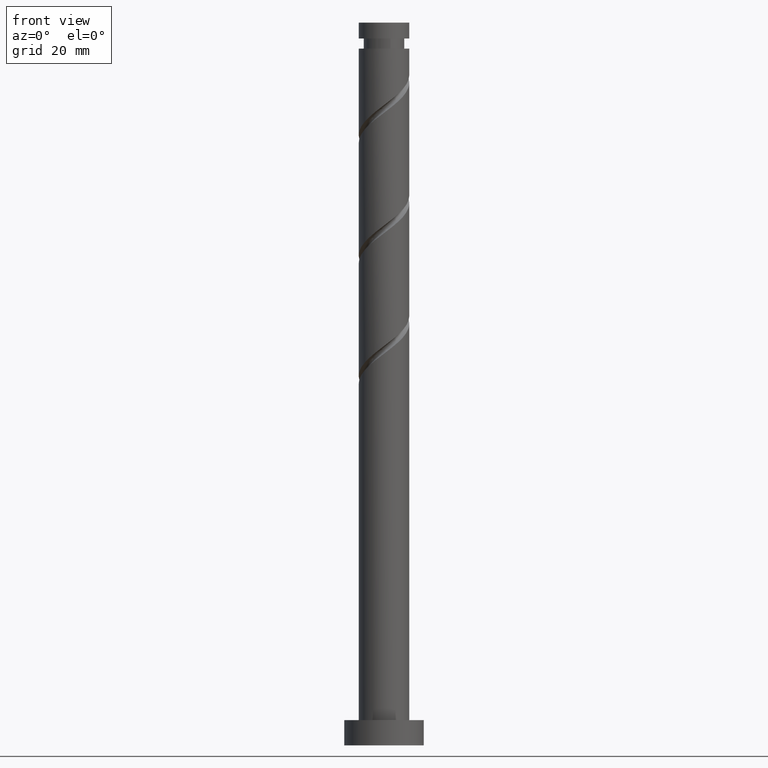
[diagram: clean part render]
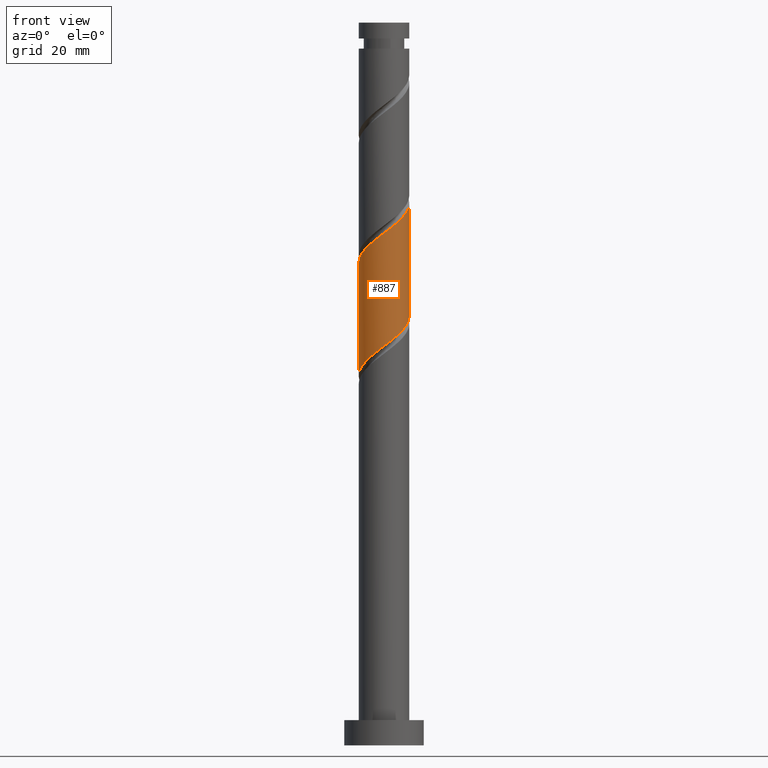
[diagram: same view with one face highlighted and labeled with its STEP entity id]
A machine part, front view. The second image highlights one B-rep face of the part: STEP entity #887.
In plain terms, the highlighted cylindrical surface (edge-blend (fillet) strip) has radius 7 mm, axis along (-0, -0, -1).
Its self-contained STEP definition (entity closure, byte-faithful):
#42 = CARTESIAN_POINT ( 'NONE',  ( 3.097475485684177521, -6.344677473403557144, 112.9322542878664279 ) ) ;
#59 = CARTESIAN_POINT ( 'NONE',  ( -6.986781546048323577, -0.4299809621350539346, 102.5155876211998134 ) ) ;
#65 = CARTESIAN_POINT ( 'NONE',  ( -6.930173478468212522, -1.349808202769841259, 103.2100320656442278 ) ) ;
#70 = VERTEX_POINT ( 'NONE', #1142 ) ;
#72 = CARTESIAN_POINT ( 'NONE',  ( -0.4898462784997363317, -7.043389613628436408, 110.1544765100886849 ) ) ;
#123 = CARTESIAN_POINT ( 'NONE',  ( 6.344677473403562473, -3.097475485684187735, 147.6544765100886991 ) ) ;
#136 = ORIENTED_EDGE ( 'NONE', *, *, #754, .T. ) ;
#144 = VERTEX_POINT ( 'NONE', #229 ) ;
#147 = LINE ( 'NONE', #1613, #1147 ) ;
#149 = CARTESIAN_POINT ( 'NONE',  ( 7.000000000000000888, 8.572527594031474176E-16, 200.0000000000000000 ) ) ;
#162 = CARTESIAN_POINT ( 'NONE',  ( 7.000000000000000888, 9.630237181691427221E-15, 118.8569320541876806 ) ) ;
#186 = CARTESIAN_POINT ( 'NONE',  ( -2.296118545398808664, -6.676610386371562456, 108.7655876211997850 ) ) ;
#191 = CARTESIAN_POINT ( 'NONE',  ( -3.945914127944255778, -5.854831194903820979, 107.3766987323109134 ) ) ;
#200 = EDGE_CURVE ( 'NONE', #442, #144, #1252, .T. ) ;
#210 = CARTESIAN_POINT ( 'NONE',  ( -5.326802183601721197, -4.634054933069405635, 105.9878098434220419 ) ) ;
#229 = CARTESIAN_POINT ( 'NONE',  ( 7.000000000000011546, 4.486135333086043795E-16, 150.0631320771009030 ) ) ;
#245 = CARTESIAN_POINT ( 'NONE',  ( -6.265720790637701931, -3.121016336671533331, 135.8489209545331562 ) ) ;
#253 = CARTESIAN_POINT ( 'NONE',  ( -0.4299809621350582090, -6.986781546048334235, 141.4044765100886707 ) ) ;
#258 = DIRECTION ( 'NONE',  ( -0.000000000000000000, -0.000000000000000000, -1.000000000000000000 ) ) ;
#332 = CARTESIAN_POINT ( 'NONE',  ( -7.000000000000010658, -4.725395884183966564E-15, 133.3964654104341889 ) ) ;
#358 = CARTESIAN_POINT ( 'NONE',  ( 2.296118545398806443, -6.676610386371576666, 143.4878098434220135 ) ) ;
#366 = CARTESIAN_POINT ( 'NONE',  ( -7.000000000000010658, -0.7035264706814521318, 133.9298917796234321 ) ) ;
#375 = CARTESIAN_POINT ( 'NONE',  ( -6.676610386371576666, -2.296118545398806443, 135.1544765100887275 ) ) ;
#387 = CARTESIAN_POINT ( 'NONE',  ( -3.097475485684187735, -6.344677473403563361, 139.3211431767553847 ) ) ;
#390 = ORIENTED_EDGE ( 'NONE', *, *, #200, .F. ) ;
#393 = DIRECTION ( 'NONE',  ( -0.000000000000000000, -0.000000000000000000, -1.000000000000000000 ) ) ;
#427 = EDGE_CURVE ( 'NONE', #70, #1440, #586, .T. ) ;
#442 = VERTEX_POINT ( 'NONE', #332 ) ;
#447 = CARTESIAN_POINT ( 'NONE',  ( -7.000000000000000888, 8.015228461780444237E-15, 102.1902653875210092 ) ) ;
#474 = CARTESIAN_POINT ( 'NONE',  ( -1.392982411949271304, -6.860000000000002096, 109.4600320656442562 ) ) ;
#523 = CARTESIAN_POINT ( 'NONE',  ( 0.000000000000000000, 0.000000000000000000, 200.0000000000000000 ) ) ;
#549 = ORIENTED_EDGE ( 'NONE', *, *, #1127, .F. ) ;
#563 = CYLINDRICAL_SURFACE ( 'NONE', #1430, 7.000000000000000888 ) ;
#578 = CARTESIAN_POINT ( 'NONE',  ( 0.4299809621350517697, -6.986781546048325353, 110.8489209545331420 ) ) ;
#586 =( BOUNDED_CURVE ( )  B_SPLINE_CURVE ( 2, ( #162, #676, #1203, #595, #863, #1133, #1552, #1140, #1012, #42, #1665, #1687, #578, #72, #474, #186, #1020, #191, #1414, #210, #1544, #1538, #719, #65, #59, #1556, #733 ),
 .UNSPECIFIED., .F., .T. ) 
 B_SPLINE_CURVE_WITH_KNOTS ( ( 3, 2, 2, 2, 2, 2, 2, 2, 2, 2, 2, 2, 2, 3 ),
 ( 0.8045317669814462391, 0.8125000000000000000, 0.8229166666666666297, 0.8333333333333333703, 0.8437500000000000000, 0.8541666666666666297, 0.8645833333333333703, 0.8750000000000000000, 0.8854166666666666297, 0.8958333333333333703, 0.9062500000000000000, 0.9166666666666666297, 0.9270833333333333703, 0.9295317669814463502 ),
 .UNSPECIFIED. ) 
 CURVE ( )  GEOMETRIC_REPRESENTATION_ITEM ( )  RATIONAL_B_SPLINE_CURVE ( ( 0.9062941362546358404, 0.9031415850403401446, 0.9090909090909153889, 0.9013135103398340897, 0.9090909090909153889, 0.9013135103398340897, 0.9090909090909153889, 0.9013135103398340897, 0.9090909090909153889, 0.9013135103398340897, 0.9090909090909153889, 0.9013135103398340897, 0.9090909090909153889, 0.9013135103398340897, 0.9090909090909153889, 0.9013135103398340897, 0.9090909090909153889, 0.9013135103398340897, 0.9090909090909153889, 0.9013135103398340897, 0.9090909090909153889, 0.9013135103398340897, 0.9090909090909153889, 0.9013135103398340897, 0.9090909090909153889, 0.9072628343904091119, 0.9062941362546357293 ) ) 
 REPRESENTATION_ITEM ( '' )  );
#595 = CARTESIAN_POINT ( 'NONE',  ( 6.676610386371559791, -2.296118545398810884, 117.0989209545331136 ) ) ;
#656 = CARTESIAN_POINT ( 'NONE',  ( 1.392982411949269972, -6.860000000000008313, 142.7933653989775848 ) ) ;
#664 = CARTESIAN_POINT ( 'NONE',  ( 6.637425475935891939, -2.223641844227019160, 148.3489209545330993 ) ) ;
#676 = CARTESIAN_POINT ( 'NONE',  ( 7.000000000000002665, -0.7035264706814455815, 118.3235056849983948 ) ) ;
#678 = EDGE_LOOP ( 'NONE', ( #549, #390, #136, #756 ) ) ;
#719 = CARTESIAN_POINT ( 'NONE',  ( -6.637425475935885721, -2.223641844227011166, 103.9044765100887133 ) ) ;
#733 = CARTESIAN_POINT ( 'NONE',  ( -7.000000000000000888, 8.015228461780444237E-15, 102.1902653875210092 ) ) ;
#754 = EDGE_CURVE ( 'NONE', #442, #1440, #147, .T. ) ;
#756 = ORIENTED_EDGE ( 'NONE', *, *, #427, .F. ) ;
#779 = CARTESIAN_POINT ( 'NONE',  ( 6.930173478468224069, -1.349808202769851029, 149.0433653989776133 ) ) ;
#790 = CARTESIAN_POINT ( 'NONE',  ( -6.860000000000008313, -1.392982411949270416, 134.4600320656442705 ) ) ;
#798 = CARTESIAN_POINT ( 'NONE',  ( 3.121016336671531555, -6.265720790637702819, 144.1822542878664990 ) ) ;
#863 = CARTESIAN_POINT ( 'NONE',  ( 6.265720790637692161, -3.121016336671535552, 116.4044765100886991 ) ) ;
#887 = ADVANCED_FACE ( 'NONE', ( #1365 ), #563, .T. ) ;
#898 = CARTESIAN_POINT ( 'NONE',  ( 7.000000000000011546, -0.2151936616037116168, 149.8999683890727113 ) ) ;
#916 = CARTESIAN_POINT ( 'NONE',  ( 4.636358155772991374, -5.244443063986622633, 145.5711431767553563 ) ) ;
#933 = CARTESIAN_POINT ( 'NONE',  ( -4.634054933069417181, -5.326802183601726526, 137.9322542878664990 ) ) ;
#1012 = CARTESIAN_POINT ( 'NONE',  ( 3.865765209376792022, -5.835739828502640947, 113.6266987323109419 ) ) ;
#1020 = CARTESIAN_POINT ( 'NONE',  ( -3.121016336671531999, -6.265720790637692161, 108.0711431767553563 ) ) ;
#1030 = CARTESIAN_POINT ( 'NONE',  ( -5.854831194903831637, -3.945914127944258887, 136.5433653989776417 ) ) ;
#1049 = CARTESIAN_POINT ( 'NONE',  ( -1.349808202769847476, -6.930173478468224069, 140.7100320656442989 ) ) ;
#1127 = EDGE_CURVE ( 'NONE', #144, #70, #1649, .T. ) ;
#1133 = CARTESIAN_POINT ( 'NONE',  ( 5.854831194903817426, -3.945914127944258443, 115.7100320656442136 ) ) ;
#1140 = CARTESIAN_POINT ( 'NONE',  ( 4.634054933069404747, -5.326802183601721197, 114.3211431767553421 ) ) ;
#1142 = CARTESIAN_POINT ( 'NONE',  ( 7.000000000000000888, 9.630237181691427221E-15, 118.8569320541876806 ) ) ;
#1147 = VECTOR ( 'NONE', #258, 1000.000000000000000 ) ;
#1171 = CARTESIAN_POINT ( 'NONE',  ( -7.000000000000010658, -4.725395884183966564E-15, 133.3964654104341889 ) ) ;
#1179 = CARTESIAN_POINT ( 'NONE',  ( 0.4898462784997315023, -7.043389613628446178, 142.0989209545331278 ) ) ;
#1194 = CARTESIAN_POINT ( 'NONE',  ( 5.326802183601726526, -4.634054933069417181, 146.2655876211998418 ) ) ;
#1203 = CARTESIAN_POINT ( 'NONE',  ( 6.860000000000002096, -1.392982411949271748, 117.7933653989775991 ) ) ;
#1252 =( BOUNDED_CURVE ( )  B_SPLINE_CURVE ( 2, ( #1171, #366, #790, #375, #245, #1030, #1445, #933, #1568, #387, #1477, #1049, #253, #1179, #656, #358, #798, #1306, #916, #1194, #1338, #123, #664, #779, #1706, #898, #1576 ),
 .UNSPECIFIED., .F., .T. ) 
 B_SPLINE_CURVE_WITH_KNOTS ( ( 3, 2, 2, 2, 2, 2, 2, 2, 2, 2, 2, 2, 2, 3 ),
 ( 0.3045317669814463502, 0.3125000000000000000, 0.3229166666666666297, 0.3333333333333333703, 0.3437500000000000000, 0.3541666666666666297, 0.3645833333333333703, 0.3750000000000000000, 0.3854166666666666297, 0.3958333333333333703, 0.4062500000000000000, 0.4166666666666666297, 0.4270833333333333703, 0.4295317669814464057 ),
 .UNSPECIFIED. ) 
 CURVE ( )  GEOMETRIC_REPRESENTATION_ITEM ( )  RATIONAL_B_SPLINE_CURVE ( ( 0.9062941362546408364, 0.9031415850403452517, 0.9090909090909207180, 0.9013135103398389747, 0.9090909090909207180, 0.9013135103398389747, 0.9090909090909207180, 0.9013135103398389747, 0.9090909090909207180, 0.9013135103398389747, 0.9090909090909207180, 0.9013135103398389747, 0.9090909090909207180, 0.9013135103398389747, 0.9090909090909207180, 0.9013135103398389747, 0.9090909090909207180, 0.9013135103398389747, 0.9090909090909207180, 0.9013135103398389747, 0.9090909090909207180, 0.9013135103398389747, 0.9090909090909207180, 0.9013135103398389747, 0.9090909090909207180, 0.9072628343904143300, 0.9062941362546409474 ) ) 
 REPRESENTATION_ITEM ( '' )  );
#1306 = CARTESIAN_POINT ( 'NONE',  ( 3.945914127944257555, -5.854831194903831637, 144.8766987323109561 ) ) ;
#1338 = CARTESIAN_POINT ( 'NONE',  ( 5.835739828502642723, -3.865765209376803568, 146.9600320656442420 ) ) ;
#1365 = FACE_OUTER_BOUND ( 'NONE', #678, .T. ) ;
#1406 = VECTOR ( 'NONE', #393, 1000.000000000000000 ) ;
#1414 = CARTESIAN_POINT ( 'NONE',  ( -4.636358155772991374, -5.244443063986613751, 106.6822542878664990 ) ) ;
#1430 = AXIS2_PLACEMENT_3D ( 'NONE', #523, #1500, #1637 ) ;
#1440 = VERTEX_POINT ( 'NONE', #447 ) ;
#1445 = CARTESIAN_POINT ( 'NONE',  ( -5.244443063986621745, -4.636358155772991374, 137.2378098434220419 ) ) ;
#1477 = CARTESIAN_POINT ( 'NONE',  ( -2.223641844227017828, -6.637425475935891939, 140.0155876211998134 ) ) ;
#1500 = DIRECTION ( 'NONE',  ( -0.000000000000000000, -0.000000000000000000, -1.000000000000000000 ) ) ;
#1538 = CARTESIAN_POINT ( 'NONE',  ( -6.344677473403557144, -3.097475485684177521, 104.5989209545331136 ) ) ;
#1544 = CARTESIAN_POINT ( 'NONE',  ( -5.835739828502638282, -3.865765209376793798, 105.2933653989776133 ) ) ;
#1552 = CARTESIAN_POINT ( 'NONE',  ( 5.244443063986613751, -4.636358155772991374, 115.0155876211998276 ) ) ;
#1556 = CARTESIAN_POINT ( 'NONE',  ( -7.000000000000002665, -0.2151936616037087024, 102.3534290755491583 ) ) ;
#1568 = CARTESIAN_POINT ( 'NONE',  ( -3.865765209376801348, -5.835739828502645388, 138.6266987323109277 ) ) ;
#1576 = CARTESIAN_POINT ( 'NONE',  ( 7.000000000000011546, 4.486135333086043795E-16, 150.0631320771008745 ) ) ;
#1613 = CARTESIAN_POINT ( 'NONE',  ( -7.000000000000000888, 0.000000000000000000, 200.0000000000000000 ) ) ;
#1637 = DIRECTION ( 'NONE',  ( -1.000000000000000000, 0.000000000000000000, 0.000000000000000000 ) ) ;
#1649 = LINE ( 'NONE', #149, #1406 ) ;
#1665 = CARTESIAN_POINT ( 'NONE',  ( 2.223641844227011166, -6.637425475935886610, 112.2378098434220135 ) ) ;
#1687 = CARTESIAN_POINT ( 'NONE',  ( 1.349808202769839705, -6.930173478468214299, 111.5433653989775706 ) ) ;
#1706 = CARTESIAN_POINT ( 'NONE',  ( 6.986781546048334235, -0.4299809621350615396, 149.7378098434220419 ) ) ;